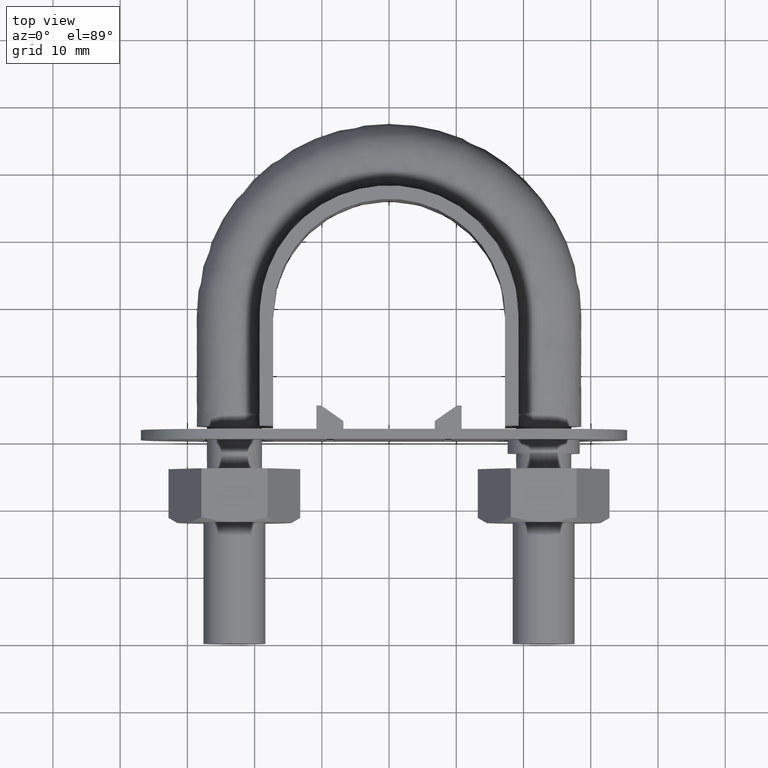
[diagram: clean part render]
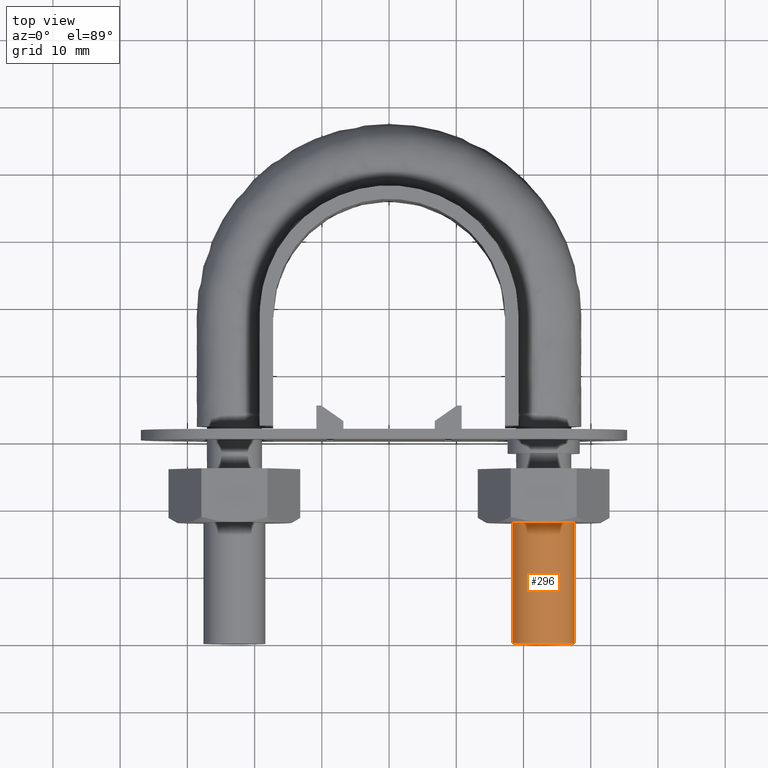
[diagram: same view with one face highlighted and labeled with its STEP entity id]
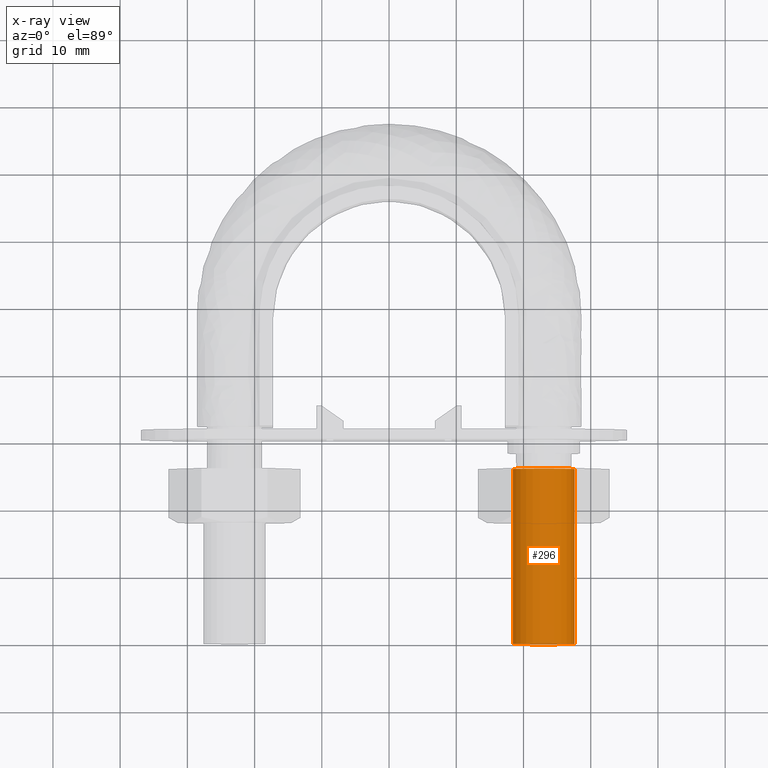
[diagram: x-ray of the same camera — body ghosted, the highlighted face saturated]
A machine part, top view. The second image highlights one B-rep face of the part: STEP entity #296.
The next image is the same camera in x-ray: the body ghosted, the highlighted face saturated — about 0% of this face is hidden behind the body in this view.
In plain terms, the highlighted cylindrical surface (bore or boss wall) has radius 4.6 mm, axis along (-0, -1, -0).
Its self-contained STEP definition (entity closure, byte-faithful):
#296 = ADVANCED_FACE( '', ( #446, #447 ), #448, .T. );
#446 = FACE_OUTER_BOUND( '', #1524, .T. );
#447 = FACE_OUTER_BOUND( '', #1525, .T. );
#448 = CYLINDRICAL_SURFACE( '', #1526, 4.60000000000000 );
#1524 = EDGE_LOOP( '', ( #1897 ) );
#1525 = EDGE_LOOP( '', ( #1898 ) );
#1526 = AXIS2_PLACEMENT_3D( '', #1899, #1900, #1901 );
#1897 = ORIENTED_EDGE( '', *, *, #2563, .F. );
#1898 = ORIENTED_EDGE( '', *, *, #2564, .T. );
#1899 = CARTESIAN_POINT( '', ( 23.0000000000000, 26.0000000000000, 8.06709435580491E-015 ) );
#1900 = DIRECTION( '', ( -2.44921270764475E-016, -1.00000000000000, -3.06151588455594E-016 ) );
#1901 = DIRECTION( '', ( 1.00000000000000, -2.44921270764475E-016, -3.74915180455534E-032 ) );
#2563 = EDGE_CURVE( '', #2825, #2825, #2826, .T. );
#2564 = EDGE_CURVE( '', #2827, #2827, #2828, .T. );
#2825 = VERTEX_POINT( '', #3403 );
#2826 = CIRCLE( '', #3404, 4.60000000000000 );
#2827 = VERTEX_POINT( '', #3405 );
#2828 = CIRCLE( '', #3406, 4.60000000000000 );
#3403 = CARTESIAN_POINT( '', ( 27.6000000000000, -6.75982707309952E-015, 1.07153055959457E-016 ) );
#3404 = AXIS2_PLACEMENT_3D( '', #4003, #4004, #4005 );
#3405 = CARTESIAN_POINT( '', ( 27.6000000000000, 26.0000000000000, 8.06709435580491E-015 ) );
#3406 = AXIS2_PLACEMENT_3D( '', #4006, #4007, #4008 );
#4003 = CARTESIAN_POINT( '', ( 23.0000000000000, -5.63318922758294E-015, 1.07153055959457E-016 ) );
#4004 = DIRECTION( '', ( -2.44921270764475E-016, -1.00000000000000, -3.06151588455594E-016 ) );
#4005 = DIRECTION( '', ( 1.00000000000000, -2.44921270764475E-016, -3.74915180455534E-032 ) );
#4006 = CARTESIAN_POINT( '', ( 23.0000000000000, 26.0000000000000, 8.06709435580491E-015 ) );
#4007 = DIRECTION( '', ( -2.44921270764475E-016, -1.00000000000000, -3.06151588455594E-016 ) );
#4008 = DIRECTION( '', ( 1.00000000000000, -2.44921270764475E-016, -3.74915180455534E-032 ) );